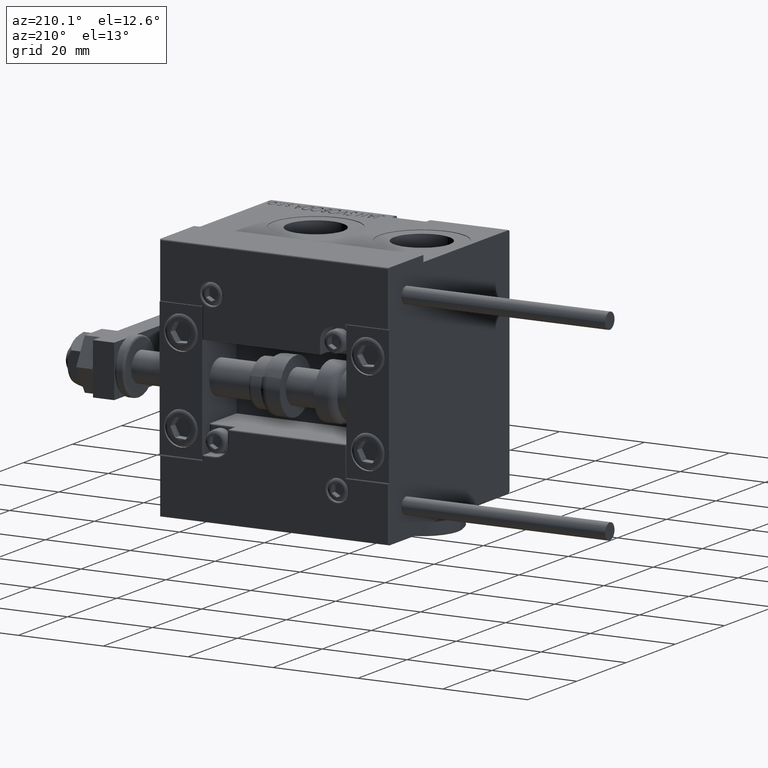
[diagram: clean part render]
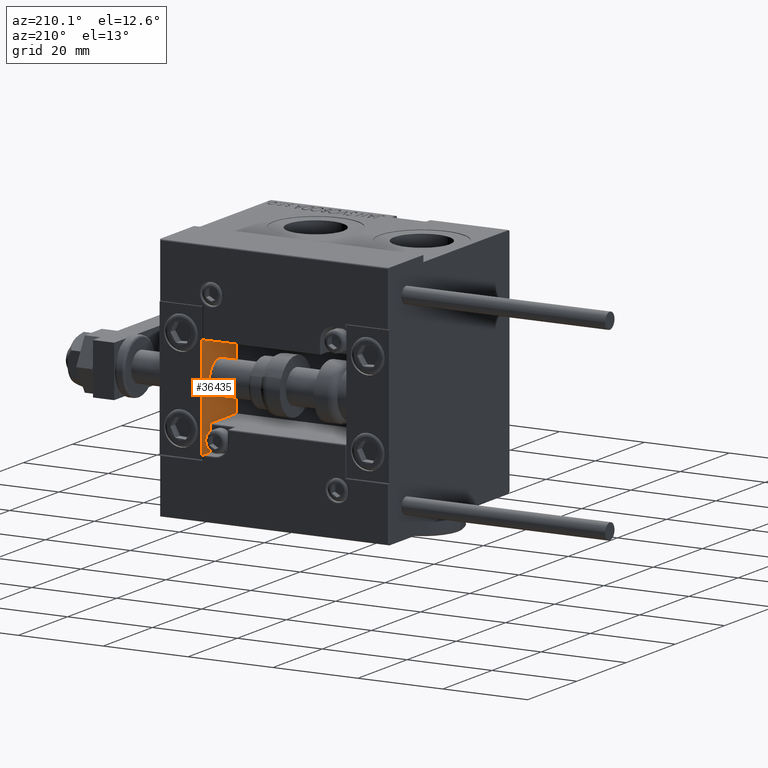
[diagram: same view with one face highlighted and labeled with its STEP entity id]
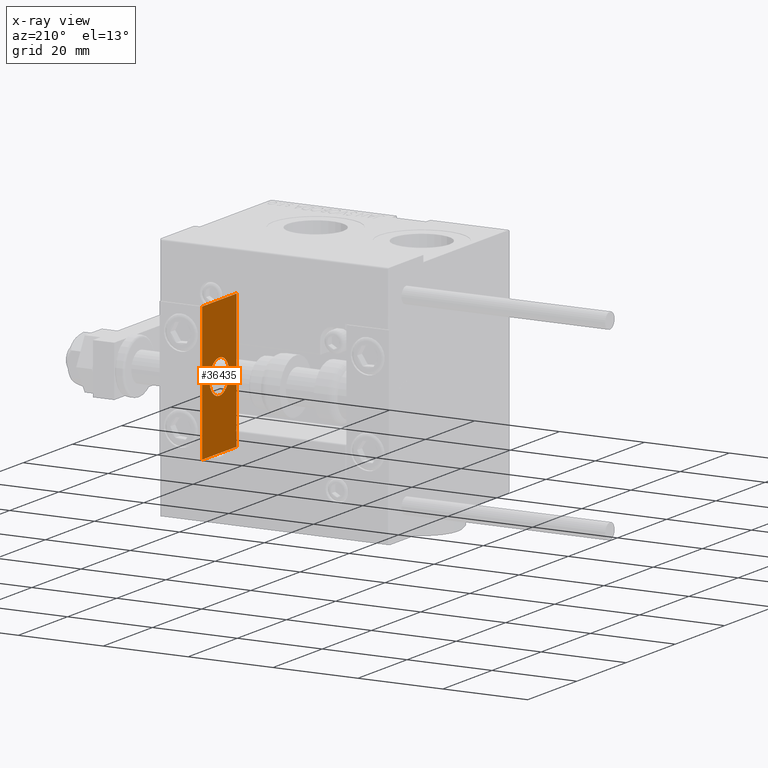
[diagram: x-ray of the same camera — body ghosted, the highlighted face saturated]
A machine part, auxiliary view. The second image highlights one B-rep face of the part: STEP entity #36435.
The next image is the same camera in x-ray: the body ghosted, the highlighted face saturated — about 2% of this face is hidden behind the body in this view.
In plain terms, the highlighted planar face has unit normal (-1, 0, 0).
Its self-contained STEP definition (entity closure, byte-faithful):
#94 = CARTESIAN_POINT ( 'NONE',  ( 0.000000000000000000, 7.000000000000000000, 15.99999999999999289 ) ) ;
#2312 = EDGE_CURVE ( 'NONE', #32543, #36055, #8046, .T. ) ;
#2441 = EDGE_CURVE ( 'NONE', #20402, #49881, #46753, .T. ) ;
#2816 = AXIS2_PLACEMENT_3D ( 'NONE', #2869, #45073, #34450 ) ;
#2869 = CARTESIAN_POINT ( 'NONE',  ( 0.000000000000000000, 0.000000000000000000, 0.000000000000000000 ) ) ;
#3114 = DIRECTION ( 'NONE',  ( -1.000000000000000000, 0.000000000000000000, -0.000000000000000000 ) ) ;
#3613 = DIRECTION ( 'NONE',  ( -0.000000000000000000, 0.000000000000000000, 1.000000000000000000 ) ) ;
#5125 = EDGE_CURVE ( 'NONE', #32543, #31539, #17360, .T. ) ;
#5625 = VECTOR ( 'NONE', #11889, 1000.000000000000000 ) ;
#6953 = CIRCLE ( 'NONE', #2816, 4.000000000000000000 ) ;
#6968 = LINE ( 'NONE', #34912, #5625 ) ;
#8046 = LINE ( 'NONE', #16074, #49193 ) ;
#8298 = EDGE_CURVE ( 'NONE', #31539, #45317, #6968, .T. ) ;
#9401 = ORIENTED_EDGE ( 'NONE', *, *, #32724, .F. ) ;
#10335 = DIRECTION ( 'NONE',  ( -1.000000000000000000, -0.000000000000000000, -0.000000000000000000 ) ) ;
#10399 = ORIENTED_EDGE ( 'NONE', *, *, #2312, .T. ) ;
#11889 = DIRECTION ( 'NONE',  ( 0.000000000000000000, 0.000000000000000000, -1.000000000000000000 ) ) ;
#15820 = LINE ( 'NONE', #19716, #25923 ) ;
#16074 = CARTESIAN_POINT ( 'NONE',  ( 0.000000000000000000, 7.000000000000000000, 15.99999999999999289 ) ) ;
#17360 = LINE ( 'NONE', #17613, #22072 ) ;
#17613 = CARTESIAN_POINT ( 'NONE',  ( 0.000000000000000000, 7.000000000000000000, 15.99999999999999289 ) ) ;
#18330 = CARTESIAN_POINT ( 'NONE',  ( 0.000000000000000000, 4.898587196589412829E-16, -4.000000000000000000 ) ) ;
#19596 = ORIENTED_EDGE ( 'NONE', *, *, #8298, .F. ) ;
#19716 = CARTESIAN_POINT ( 'NONE',  ( 0.000000000000000000, 7.000000000000000000, -16.00000000000000711 ) ) ;
#20402 = VERTEX_POINT ( 'NONE', #48715 ) ;
#20733 = EDGE_CURVE ( 'NONE', #36055, #45317, #15820, .T. ) ;
#22072 = VECTOR ( 'NONE', #33403, 1000.000000000000000 ) ;
#22786 = PLANE ( 'NONE',  #47611 ) ;
#25923 = VECTOR ( 'NONE', #47385, 1000.000000000000000 ) ;
#28004 = DIRECTION ( 'NONE',  ( 0.000000000000000000, 0.000000000000000000, -1.000000000000000000 ) ) ;
#28757 = EDGE_LOOP ( 'NONE', ( #19596, #40086, #10399, #30187 ) ) ;
#30080 = ORIENTED_EDGE ( 'NONE', *, *, #2441, .F. ) ;
#30187 = ORIENTED_EDGE ( 'NONE', *, *, #20733, .T. ) ;
#31085 = FACE_BOUND ( 'NONE', #49233, .T. ) ;
#31539 = VERTEX_POINT ( 'NONE', #40171 ) ;
#32543 = VERTEX_POINT ( 'NONE', #94 ) ;
#32724 = EDGE_CURVE ( 'NONE', #49881, #20402, #6953, .T. ) ;
#33403 = DIRECTION ( 'NONE',  ( 0.000000000000000000, -1.000000000000000000, 0.000000000000000000 ) ) ;
#34450 = DIRECTION ( 'NONE',  ( 0.000000000000000000, 0.000000000000000000, 1.000000000000000000 ) ) ;
#34912 = CARTESIAN_POINT ( 'NONE',  ( 0.000000000000000000, -7.000000000000000000, 15.99999999999999289 ) ) ;
#34936 = CARTESIAN_POINT ( 'NONE',  ( 0.000000000000000000, 0.000000000000000000, 0.000000000000000000 ) ) ;
#36055 = VERTEX_POINT ( 'NONE', #39399 ) ;
#36435 = ADVANCED_FACE ( 'NONE', ( #31085, #47819 ), #22786, .T. ) ;
#39399 = CARTESIAN_POINT ( 'NONE',  ( 0.000000000000000000, 7.000000000000000000, -16.00000000000000711 ) ) ;
#40086 = ORIENTED_EDGE ( 'NONE', *, *, #5125, .F. ) ;
#40171 = CARTESIAN_POINT ( 'NONE',  ( 0.000000000000000000, -7.000000000000000000, 15.99999999999999289 ) ) ;
#41383 = DIRECTION ( 'NONE',  ( 0.000000000000000000, 0.000000000000000000, 1.000000000000000000 ) ) ;
#41404 = CARTESIAN_POINT ( 'NONE',  ( 0.000000000000000000, -7.000000000000000000, -16.00000000000000711 ) ) ;
#45073 = DIRECTION ( 'NONE',  ( -1.000000000000000000, -0.000000000000000000, -0.000000000000000000 ) ) ;
#45103 = AXIS2_PLACEMENT_3D ( 'NONE', #45762, #10335, #41383 ) ;
#45317 = VERTEX_POINT ( 'NONE', #41404 ) ;
#45762 = CARTESIAN_POINT ( 'NONE',  ( 0.000000000000000000, 0.000000000000000000, 0.000000000000000000 ) ) ;
#46753 = CIRCLE ( 'NONE', #45103, 4.000000000000000000 ) ;
#47385 = DIRECTION ( 'NONE',  ( 0.000000000000000000, -1.000000000000000000, 0.000000000000000000 ) ) ;
#47611 = AXIS2_PLACEMENT_3D ( 'NONE', #34936, #3114, #3613 ) ;
#47819 = FACE_OUTER_BOUND ( 'NONE', #28757, .T. ) ;
#48715 = CARTESIAN_POINT ( 'NONE',  ( 0.000000000000000000, 0.000000000000000000, 4.000000000000000000 ) ) ;
#49193 = VECTOR ( 'NONE', #28004, 1000.000000000000000 ) ;
#49233 = EDGE_LOOP ( 'NONE', ( #30080, #9401 ) ) ;
#49881 = VERTEX_POINT ( 'NONE', #18330 ) ;